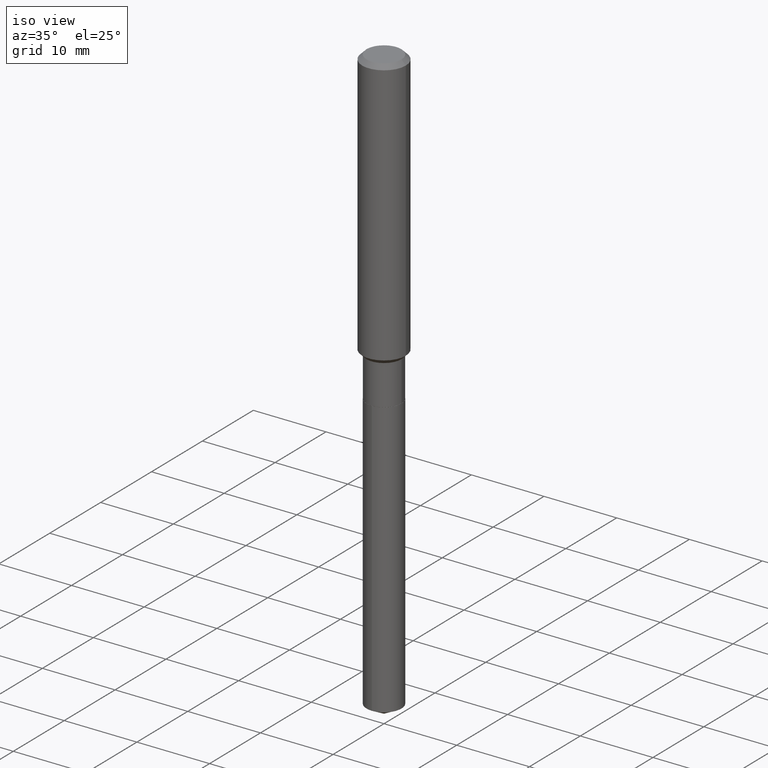
[diagram: clean part render]
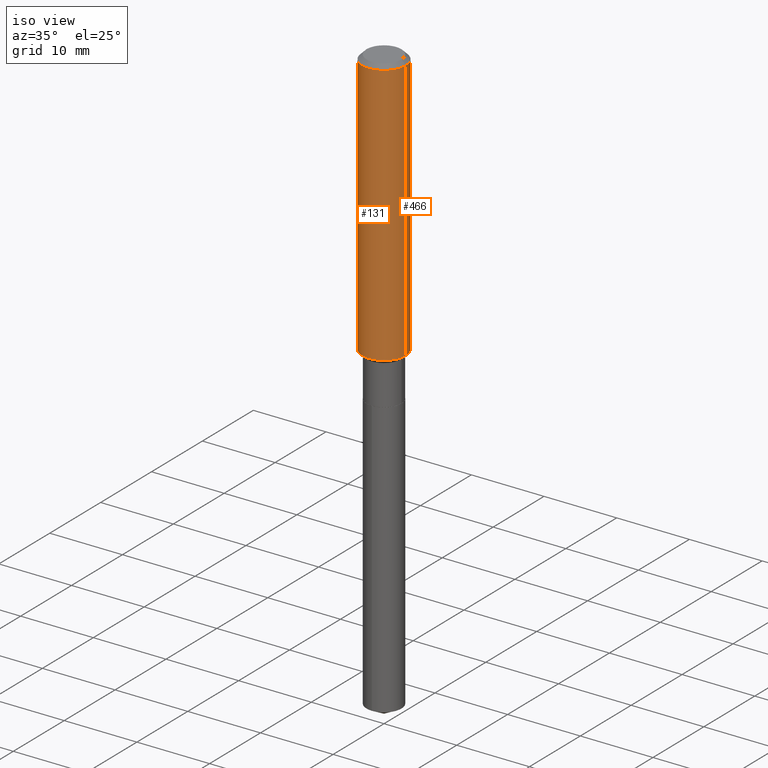
[diagram: same view with one multi-face feature highlighted, each face labeled with its STEP entity id]
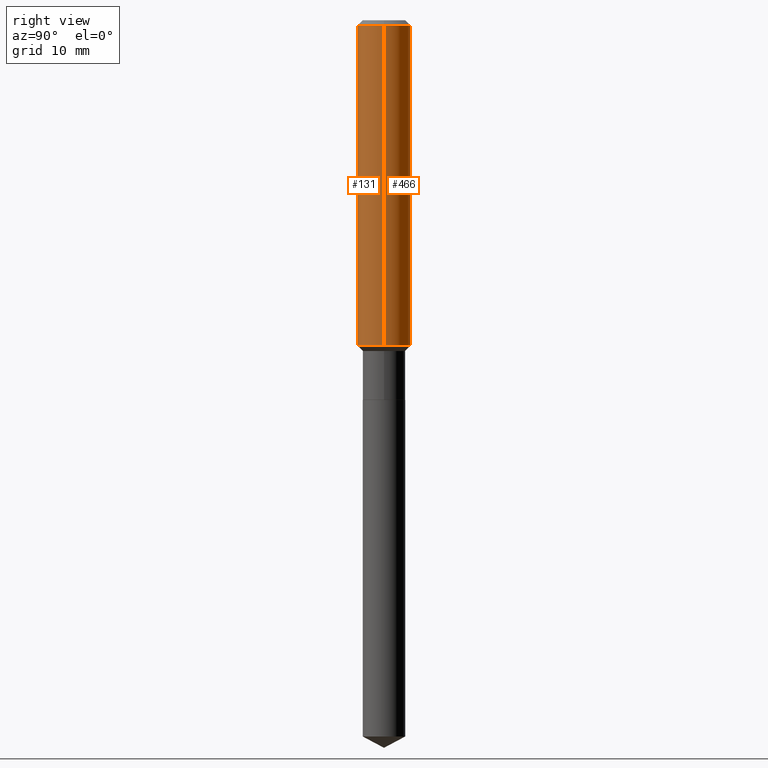
[diagram: same view with one multi-face feature highlighted, each face labeled with its STEP entity id]
A machine part, iso view. The highlighted faces form ONE feature: a constant-radius fillet chain: 2 tangent blend faces with common blend radius 2.9997 mm. The faces share edges in the B-rep.
A second angle (right view) of the same feature is appended — it is thin or edge-on in the first view.
Their STEP definitions:
[1] entity #131 (Cylinder):
#7 = DIRECTION ( 'NONE',  ( 1.000000000000000000, -6.982962677686266711E-15, 4.876176775795936353E-29 ) ) ;
#26 = CARTESIAN_POINT ( 'NONE',  ( 0.1181000000000000799, -8.246878922347486570E-16, 5.758764772215004644E-30 ) ) ;
#33 = DIRECTION ( 'NONE',  ( -2.445468806185136597E-29, 3.491481338843145583E-15, 1.000000000000000000 ) ) ;
#45 = VERTEX_POINT ( 'NONE', #99 ) ;
#55 = ORIENTED_EDGE ( 'NONE', *, *, #385, .T. ) ;
#66 = CARTESIAN_POINT ( 'NONE',  ( -0.1181000000000001632, -4.202548082356822902E-15, -1.443999999999999950 ) ) ;
#72 = AXIS2_PLACEMENT_3D ( 'NONE', #429, #382, #7 ) ;
#91 = EDGE_CURVE ( 'NONE', #452, #264, #291, .T. ) ;
#99 = CARTESIAN_POINT ( 'NONE',  ( -0.1180999999999999966, -1.722932950323809293E-15, -0.02362000000000014088 ) ) ;
#116 = CARTESIAN_POINT ( 'NONE',  ( 5.776197320209327532E-31, -8.246878922347559293E-17, -0.02362000000000014088 ) ) ;
#123 = VERTEX_POINT ( 'NONE', #66 ) ;
#131 = ADVANCED_FACE ( 'NONE', ( #348 ), #320, .T. ) ;
#136 = CARTESIAN_POINT ( 'NONE',  ( 0.1180999999999999966, -9.071566814582237199E-16, -0.02362000000000014088 ) ) ;
#180 = VECTOR ( 'NONE', #411, 39.37007874015748143 ) ;
#184 = EDGE_CURVE ( 'NONE', #45, #264, #284, .T. ) ;
#187 = CARTESIAN_POINT ( 'NONE',  ( 0.1181000000000001632, -5.866386945524251729E-15, -1.443999999999999950 ) ) ;
#190 = AXIS2_PLACEMENT_3D ( 'NONE', #304, #33, #442 ) ;
#224 = AXIS2_PLACEMENT_3D ( 'NONE', #116, #357, #360 ) ;
#258 = CARTESIAN_POINT ( 'NONE',  ( -0.1181000000000000799, 8.391509709326788873E-16, -5.809262341591047988E-30 ) ) ;
#263 = LINE ( 'NONE', #258, #180 ) ;
#264 = VERTEX_POINT ( 'NONE', #136 ) ;
#284 = CIRCLE ( 'NONE', #224, 0.1180999999999999966 ) ;
#291 = LINE ( 'NONE', #26, #358 ) ;
#304 = CARTESIAN_POINT ( 'NONE',  ( 3.531256956131336914E-29, -5.041699053289501888E-15, -1.443999999999999950 ) ) ;
#307 = EDGE_LOOP ( 'NONE', ( #327, #55, #338, #383 ) ) ;
#320 = CYLINDRICAL_SURFACE ( 'NONE', #72, 0.1181000000000000799 ) ;
#321 = CIRCLE ( 'NONE', #190, 0.1181000000000001632 ) ;
#327 = ORIENTED_EDGE ( 'NONE', *, *, #349, .F. ) ;
#338 = ORIENTED_EDGE ( 'NONE', *, *, #91, .T. ) ;
#348 = FACE_OUTER_BOUND ( 'NONE', #307, .T. ) ;
#349 = EDGE_CURVE ( 'NONE', #123, #45, #263, .T. ) ;
#357 = DIRECTION ( 'NONE',  ( -2.445468806185136597E-29, 3.491481338843145583E-15, 1.000000000000000000 ) ) ;
#358 = VECTOR ( 'NONE', #366, 39.37007874015748143 ) ;
#360 = DIRECTION ( 'NONE',  ( 1.000000000000000000, -6.982962677686266711E-15, 0.000000000000000000 ) ) ;
#366 = DIRECTION ( 'NONE',  ( -2.445468806185136877E-29, 3.491481338843145188E-15, 1.000000000000000000 ) ) ;
#382 = DIRECTION ( 'NONE',  ( -2.445468806185136597E-29, 3.491481338843145583E-15, 1.000000000000000000 ) ) ;
#383 = ORIENTED_EDGE ( 'NONE', *, *, #184, .F. ) ;
#385 = EDGE_CURVE ( 'NONE', #123, #452, #321, .T. ) ;
#411 = DIRECTION ( 'NONE',  ( -2.445468806185136877E-29, 3.491481338843145188E-15, 1.000000000000000000 ) ) ;
#429 = CARTESIAN_POINT ( 'NONE',  ( 0.000000000000000000, 0.000000000000000000, 0.000000000000000000 ) ) ;
#442 = DIRECTION ( 'NONE',  ( 1.000000000000000000, -6.982962677686270655E-15, 0.000000000000000000 ) ) ;
#452 = VERTEX_POINT ( 'NONE', #187 ) ;
[2] entity #466 (Cylinder):
#26 = CARTESIAN_POINT ( 'NONE',  ( 0.1181000000000000799, -8.246878922347486570E-16, 5.758764772215004644E-30 ) ) ;
#31 = DIRECTION ( 'NONE',  ( -2.445468806185136597E-29, 3.491481338843145583E-15, 1.000000000000000000 ) ) ;
#45 = VERTEX_POINT ( 'NONE', #99 ) ;
#54 = DIRECTION ( 'NONE',  ( 1.000000000000000000, -6.982962677686270655E-15, 0.000000000000000000 ) ) ;
#66 = CARTESIAN_POINT ( 'NONE',  ( -0.1181000000000001632, -4.202548082356822902E-15, -1.443999999999999950 ) ) ;
#91 = EDGE_CURVE ( 'NONE', #452, #264, #291, .T. ) ;
#99 = CARTESIAN_POINT ( 'NONE',  ( -0.1180999999999999966, -1.722932950323809293E-15, -0.02362000000000014088 ) ) ;
#102 = CARTESIAN_POINT ( 'NONE',  ( 0.000000000000000000, 0.000000000000000000, 0.000000000000000000 ) ) ;
#115 = DIRECTION ( 'NONE',  ( 1.000000000000000000, -6.982962677686266711E-15, 4.876176775795936353E-29 ) ) ;
#123 = VERTEX_POINT ( 'NONE', #66 ) ;
#136 = CARTESIAN_POINT ( 'NONE',  ( 0.1180999999999999966, -9.071566814582237199E-16, -0.02362000000000014088 ) ) ;
#171 = EDGE_CURVE ( 'NONE', #452, #123, #313, .T. ) ;
#180 = VECTOR ( 'NONE', #411, 39.37007874015748143 ) ;
#182 = DIRECTION ( 'NONE',  ( 1.000000000000000000, -6.982962677686266711E-15, 0.000000000000000000 ) ) ;
#185 = AXIS2_PLACEMENT_3D ( 'NONE', #102, #276, #115 ) ;
#187 = CARTESIAN_POINT ( 'NONE',  ( 0.1181000000000001632, -5.866386945524251729E-15, -1.443999999999999950 ) ) ;
#196 = CARTESIAN_POINT ( 'NONE',  ( 3.531256956131336914E-29, -5.041699053289501888E-15, -1.443999999999999950 ) ) ;
#210 = CARTESIAN_POINT ( 'NONE',  ( 5.776197320209327532E-31, -8.246878922347559293E-17, -0.02362000000000014088 ) ) ;
#258 = CARTESIAN_POINT ( 'NONE',  ( -0.1181000000000000799, 8.391509709326788873E-16, -5.809262341591047988E-30 ) ) ;
#263 = LINE ( 'NONE', #258, #180 ) ;
#264 = VERTEX_POINT ( 'NONE', #136 ) ;
#272 = DIRECTION ( 'NONE',  ( -2.445468806185136597E-29, 3.491481338843145583E-15, 1.000000000000000000 ) ) ;
#276 = DIRECTION ( 'NONE',  ( -2.445468806185136597E-29, 3.491481338843145583E-15, 1.000000000000000000 ) ) ;
#277 = EDGE_CURVE ( 'NONE', #264, #45, #423, .T. ) ;
#291 = LINE ( 'NONE', #26, #358 ) ;
#310 = ORIENTED_EDGE ( 'NONE', *, *, #91, .F. ) ;
#313 = CIRCLE ( 'NONE', #457, 0.1181000000000001632 ) ;
#337 = ORIENTED_EDGE ( 'NONE', *, *, #277, .F. ) ;
#340 = AXIS2_PLACEMENT_3D ( 'NONE', #210, #31, #182 ) ;
#349 = EDGE_CURVE ( 'NONE', #123, #45, #263, .T. ) ;
#358 = VECTOR ( 'NONE', #366, 39.37007874015748143 ) ;
#366 = DIRECTION ( 'NONE',  ( -2.445468806185136877E-29, 3.491481338843145188E-15, 1.000000000000000000 ) ) ;
#386 = ORIENTED_EDGE ( 'NONE', *, *, #349, .T. ) ;
#411 = DIRECTION ( 'NONE',  ( -2.445468806185136877E-29, 3.491481338843145188E-15, 1.000000000000000000 ) ) ;
#415 = CYLINDRICAL_SURFACE ( 'NONE', #185, 0.1181000000000000799 ) ;
#423 = CIRCLE ( 'NONE', #340, 0.1180999999999999966 ) ;
#452 = VERTEX_POINT ( 'NONE', #187 ) ;
#457 = AXIS2_PLACEMENT_3D ( 'NONE', #196, #272, #54 ) ;
#463 = EDGE_LOOP ( 'NONE', ( #482, #386, #337, #310 ) ) ;
#466 = ADVANCED_FACE ( 'NONE', ( #487 ), #415, .T. ) ;
#482 = ORIENTED_EDGE ( 'NONE', *, *, #171, .T. ) ;
#487 = FACE_OUTER_BOUND ( 'NONE', #463, .T. ) ;